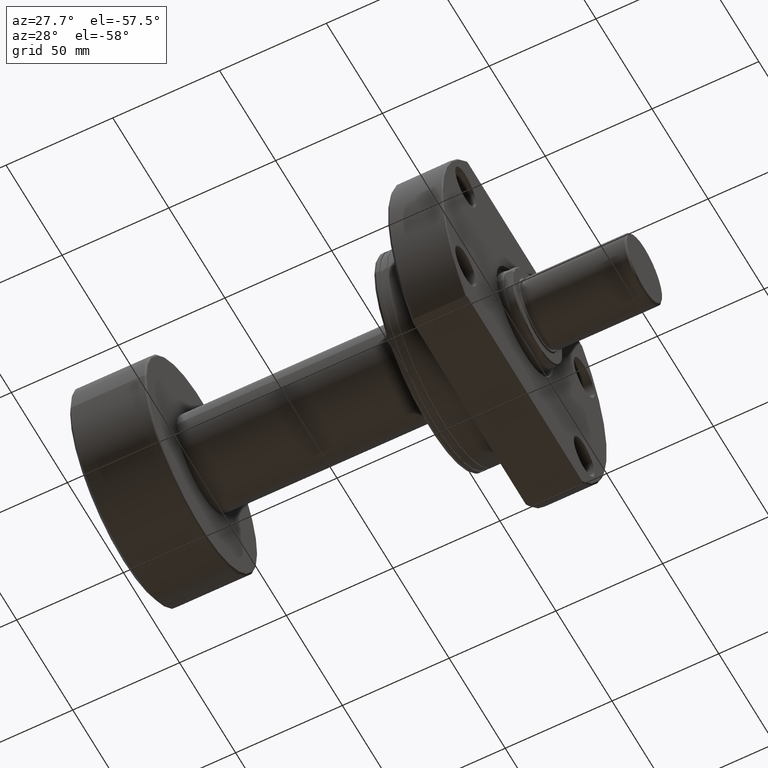
[diagram: clean part render]
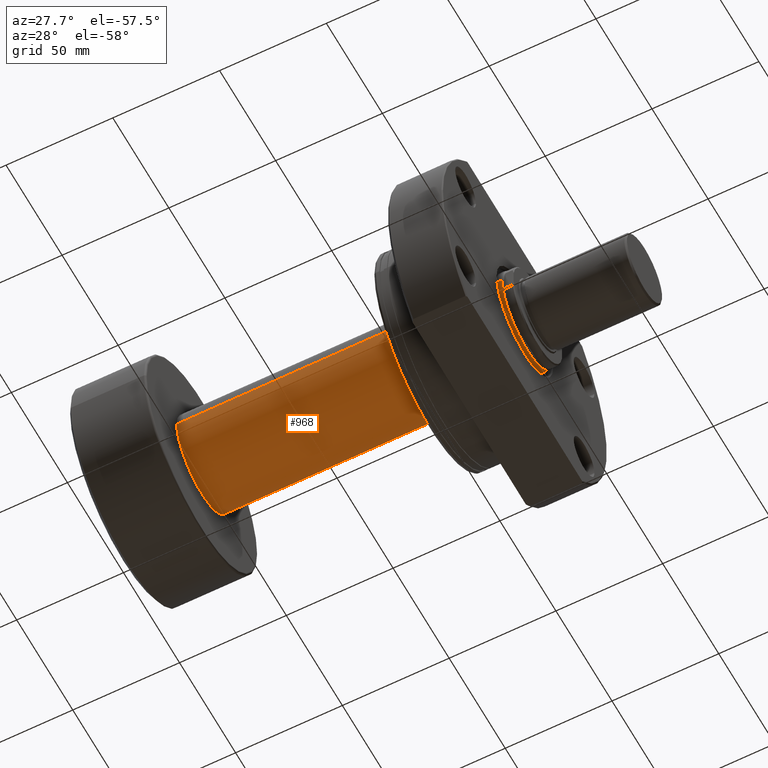
[diagram: same view with one face highlighted and labeled with its STEP entity id]
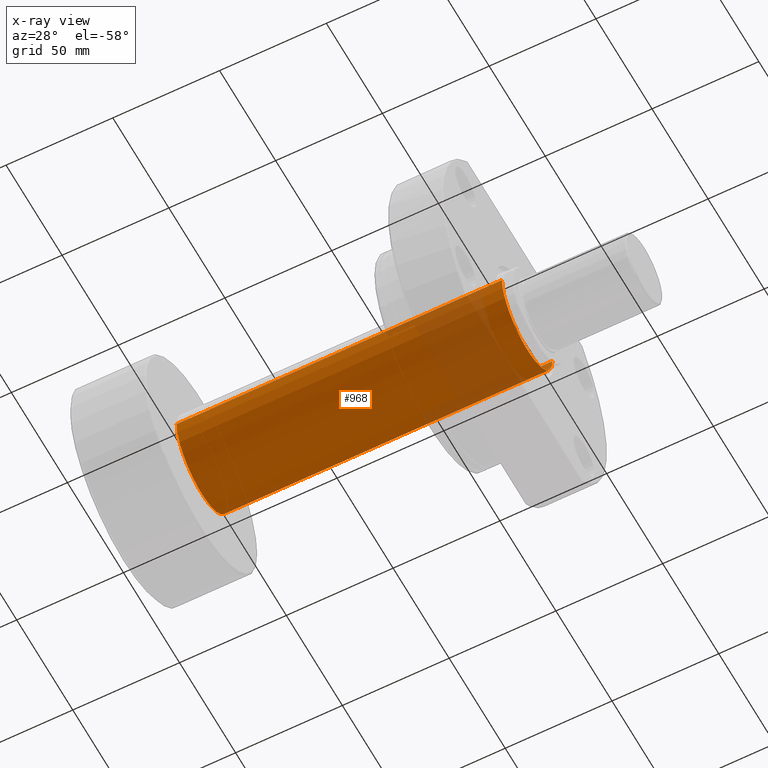
[diagram: x-ray of the same camera — body ghosted, the highlighted face saturated]
A machine part, auxiliary view. The second image highlights one B-rep face of the part: STEP entity #968.
The next image is the same camera in x-ray: the body ghosted, the highlighted face saturated — about 20% of this face is hidden behind the body in this view.
In plain terms, the highlighted cylindrical surface (partial cylindrical patch) has radius 22.5 mm, axis along (-1, -0, -0).
Its self-contained STEP definition (entity closure, byte-faithful):
#43 = ORIENTED_EDGE ( 'NONE', *, *, #802, .F. ) ;
#103 = DIRECTION ( 'NONE',  ( 0.000000000000000000, -1.000000000000000000, 0.000000000000000000 ) ) ;
#129 = EDGE_CURVE ( 'NONE', #2918, #2979, #2428, .T. ) ;
#538 = CARTESIAN_POINT ( 'NONE',  ( 36.70000000000001705, 3.925220321993473056E-16, 0.000000000000000000 ) ) ;
#576 = DIRECTION ( 'NONE',  ( 0.000000000000000000, -1.000000000000000000, 0.000000000000000000 ) ) ;
#746 = DIRECTION ( 'NONE',  ( -1.000000000000000000, -1.069542322069065801E-17, -0.000000000000000000 ) ) ;
#802 = EDGE_CURVE ( 'NONE', #1409, #2979, #3177, .T. ) ;
#910 = VECTOR ( 'NONE', #746, 1000.000000000000000 ) ;
#968 = ADVANCED_FACE ( 'NONE', ( #2610 ), #2052, .T. ) ;
#992 = EDGE_CURVE ( 'NONE', #3054, #1409, #2872, .T. ) ;
#1010 = CARTESIAN_POINT ( 'NONE',  ( 2.406470224655408490E-16, -22.50000000000009592, 0.000000000000000000 ) ) ;
#1133 = VECTOR ( 'NONE', #2131, 1000.000000000000000 ) ;
#1256 = AXIS2_PLACEMENT_3D ( 'NONE', #1466, #1482, #1729 ) ;
#1359 = EDGE_CURVE ( 'NONE', #3054, #2918, #2039, .T. ) ;
#1409 = VERTEX_POINT ( 'NONE', #3497 ) ;
#1441 = AXIS2_PLACEMENT_3D ( 'NONE', #1548, #2993, #103 ) ;
#1466 = CARTESIAN_POINT ( 'NONE',  ( 0.000000000000000000, 0.000000000000000000, 0.000000000000000000 ) ) ;
#1472 = ORIENTED_EDGE ( 'NONE', *, *, #992, .F. ) ;
#1482 = DIRECTION ( 'NONE',  ( -1.000000000000000000, -1.069542322069065801E-17, -0.000000000000000000 ) ) ;
#1548 = CARTESIAN_POINT ( 'NONE',  ( 189.0667575123238180, 2.022148988557997879E-15, 0.000000000000000000 ) ) ;
#1635 = EDGE_LOOP ( 'NONE', ( #1472, #1663, #1662, #43 ) ) ;
#1662 = ORIENTED_EDGE ( 'NONE', *, *, #129, .T. ) ;
#1663 = ORIENTED_EDGE ( 'NONE', *, *, #1359, .T. ) ;
#1729 = DIRECTION ( 'NONE',  ( 1.069542322069065955E-17, -1.000000000000000000, 0.000000000000000000 ) ) ;
#2039 = CIRCLE ( 'NONE', #1441, 22.50000000000019540 ) ;
#2052 = CYLINDRICAL_SURFACE ( 'NONE', #1256, 22.50000000000009592 ) ;
#2131 = DIRECTION ( 'NONE',  ( -1.000000000000000000, -1.069542322069065801E-17, -0.000000000000000000 ) ) ;
#2428 = LINE ( 'NONE', #1010, #1133 ) ;
#2593 = CARTESIAN_POINT ( 'NONE',  ( -2.406470224655408490E-16, 22.50000000000009592, 2.755455298081556216E-15 ) ) ;
#2610 = FACE_OUTER_BOUND ( 'NONE', #1635, .T. ) ;
#2637 = CARTESIAN_POINT ( 'NONE',  ( 189.0667575123238180, -22.50000000000019185, 0.000000000000000000 ) ) ;
#2753 = AXIS2_PLACEMENT_3D ( 'NONE', #538, #2837, #576 ) ;
#2837 = DIRECTION ( 'NONE',  ( -1.000000000000000000, -1.069542322069065801E-17, -0.000000000000000000 ) ) ;
#2872 = LINE ( 'NONE', #2593, #910 ) ;
#2918 = VERTEX_POINT ( 'NONE', #2637 ) ;
#2979 = VERTEX_POINT ( 'NONE', #3261 ) ;
#2993 = DIRECTION ( 'NONE',  ( -1.000000000000000000, -1.069542322069065801E-17, -0.000000000000000000 ) ) ;
#3054 = VERTEX_POINT ( 'NONE', #3588 ) ;
#3177 = CIRCLE ( 'NONE', #2753, 22.50000000000000000 ) ;
#3261 = CARTESIAN_POINT ( 'NONE',  ( 36.70000000000001705, -22.50000000000000000, 0.000000000000000000 ) ) ;
#3497 = CARTESIAN_POINT ( 'NONE',  ( 36.70000000000001705, 22.50000000000000000, 2.755455298081550694E-15 ) ) ;
#3588 = CARTESIAN_POINT ( 'NONE',  ( 189.0667575123238180, 22.50000000000019895, 2.755455298081569232E-15 ) ) ;